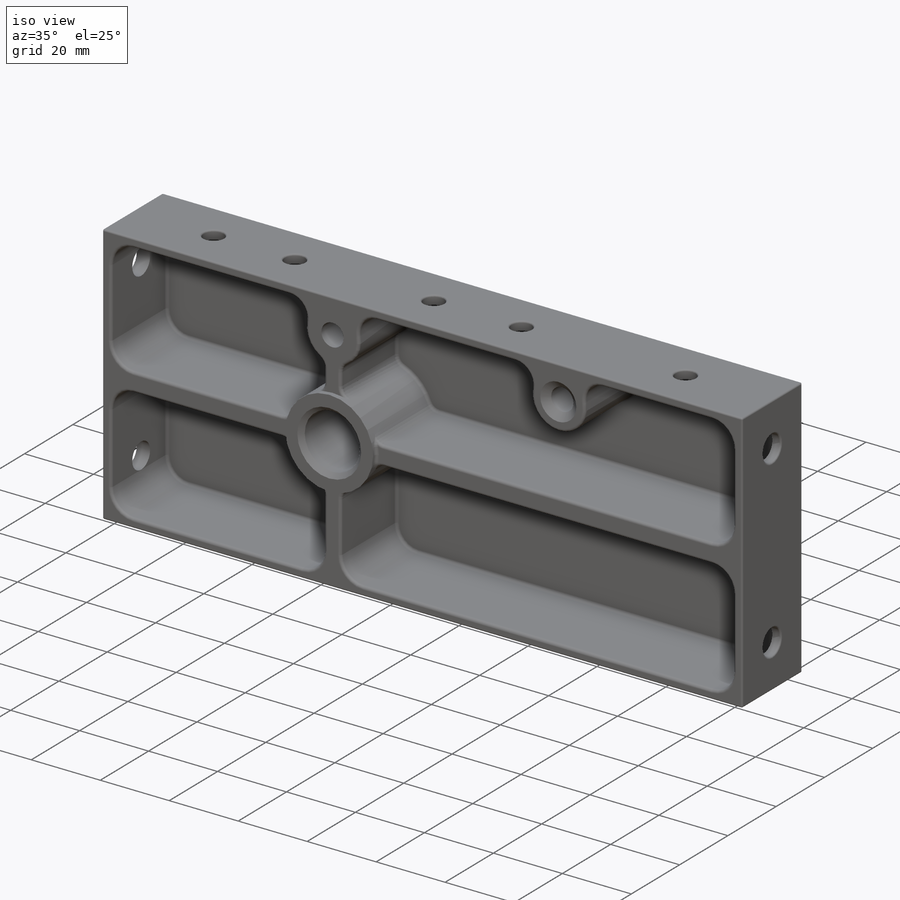
[diagram: iso view]
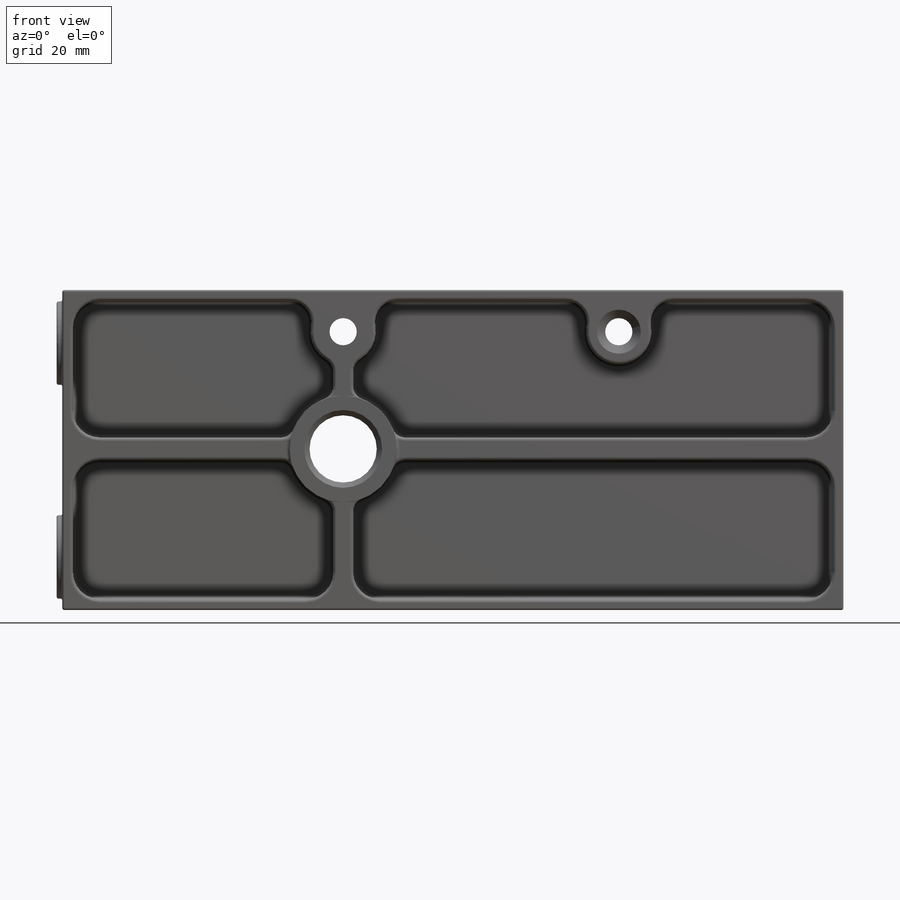
[diagram: front view]
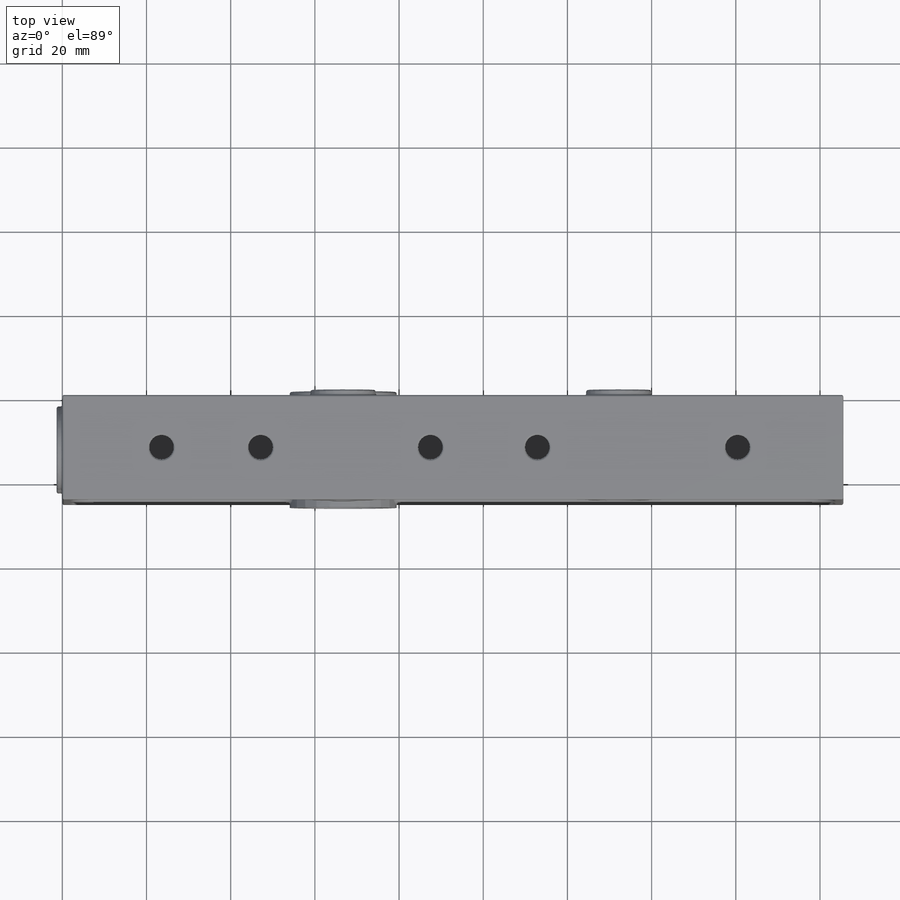
[diagram: top view]
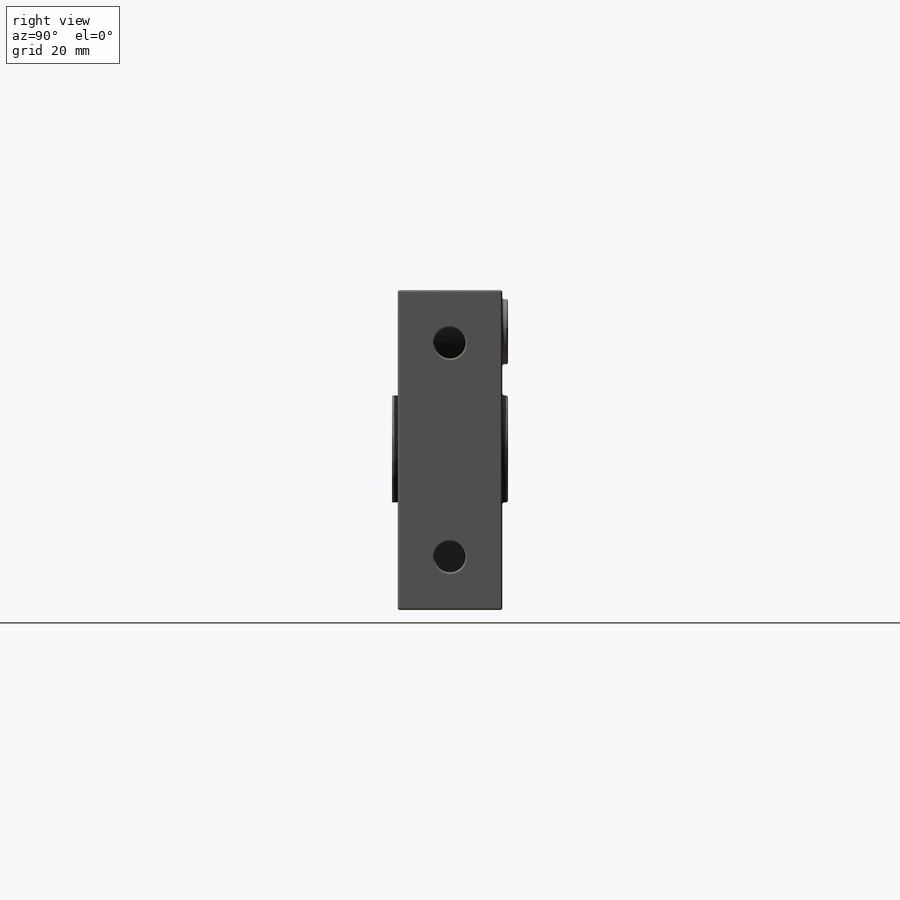
[diagram: right view]
SOLIDWORKS PART (.sldprt)
format: sldprt  version: not decoded by parser v0  size: 1,126,400 bytes
history: native  units: mm
features: sketch x14, fillet x9, cut_extrude x5, extrude x4, hole x2, material x1, chamfer x1 (+16 scaffold rows collapsed)
feature tree (52):
  scaffold x16  (default folders/planes/origin — collapsed)
  material  "Material <not specified>"
  sketch  "Sketch1"  dims[D1=185.547mm D2=75.9968mm]
  extrude  "Extrude1"  Depth=24.8539mm
  sketch  "Sketch2"  dims[D1=0.0mm D2=2.54mm D3=33.02mm D4=32.512mm D5=113.8936mm D6=61.7855mm]
  cut_extrude  "Extrude3"  Depth=23.0505mm
  sketch  "Sketch3"  dims[D1=5.3848mm]
  extrude  "Extrude4"  Depth=1.3462mm
  sketch  "Sketch4"  dims[D3=15.5194mm D1=53.34mm D2=9.8933mm]
  extrude  "Extrude5"  Depth=1.3462mm
  fillet  "Fillet1"  Radius=5.08mm
  sketch  "Sketch6"
  hole  "CSK for 1/4 Flat Head Machine Screw (100)2"  Diameter=6.4516mm Depth=26.2001mm
  sketch  "3DSketch2"
  sketch  "Sketch7"  dims[hole-wizard template sketch: 54 standard entries collapsed; hole parameters kept: c17.Thru Hole Dia.=6.4516mm c17.Thru Hole Depth=26.2001mm c17.Near C'Sink Dia.=10.4648mm c17.D4=~3.666174mm c17.Near C'Sink Angle=100.0deg]
  hole  "1/4 (0.25) Diameter Hole2"  Diameter=6.4516mm Depth=26.2001mm
  sketch  "3DSketch3"
  sketch  "Sketch13"  dims[hole-wizard template sketch: 59 standard entries collapsed; hole parameters kept: c18.Thru Hole Dia.=6.4516mm c18.Thru Hole Depth=26.2001mm]
  sketch  "Sketch8"  dims[D3=19.812mm D4=19.812mm D1=25.4mm D2=25.4mm]
  extrude  "Extrude6"  Depth=1.3462mm
  sketch  "Sketch10"  dims[D3=5.8166mm D1=23.5458mm D2=23.5458mm D4=87.4268mm D5=25.4mm D6=25.146mm]
  cut_extrude  "Extrude8"  [1 undecoded]
  sketch  "Sketch11"  dims[D1=7.3914mm]
  cut_extrude  "Extrude9"  [1 undecoded]
  sketch  "Sketch12"
  cut_extrude  "Extrude10"  [1 undecoded]
  sketch  "Sketch15"  dims[D1=15.9766mm]
  cut_extrude  "Extrude11"  [1 undecoded]
  fillet  "Fillet2"  Radius=0.79375mm
  fillet  "Fillet4"  Radius=6.35mm
  fillet  "Fillet5"  Radius=3.175mm
  fillet  "Fillet6"  Radius=0.79375mm
  fillet  "Fillet7"  Radius=0.79375mm
  fillet  "Fillet8"  Radius=0.47037mm
  fillet  "Fillet9"  Radius=0.47037mm
  fillet  "Fillet10"  Radius=0.47037mm
  chamfer  "Chamfer1"  Distance=1.27mm Angle=45deg
decode coverage: 27 of 35 modeling features carry decoded parameters
note: ~ marks probable driven/reference dimensions
note: 4 parameter values undecoded
summary: no parameter record found for 4 features
note: suppression state not decoded; provenance and decode notes live in map.json
